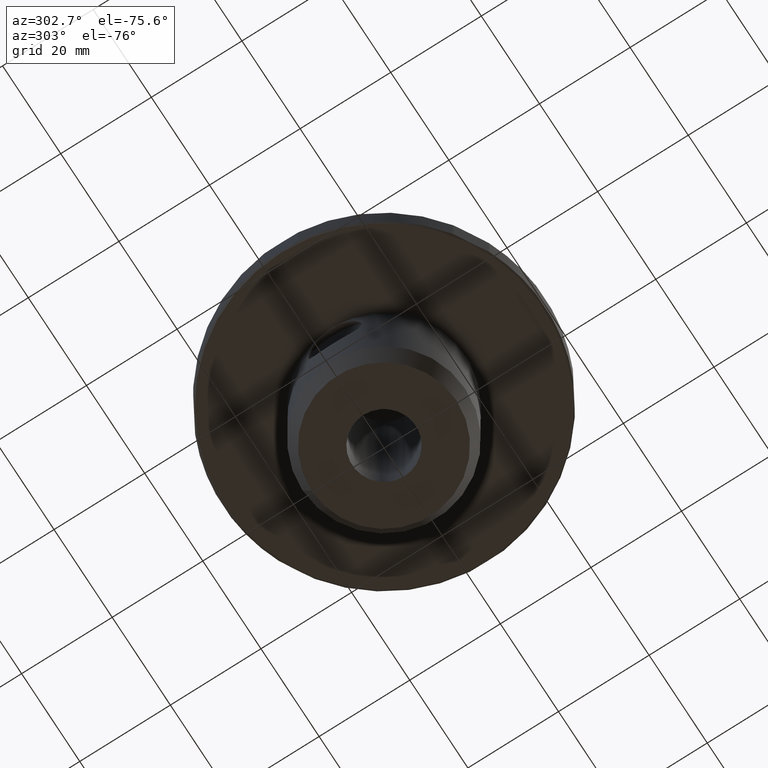
[diagram: clean part render]
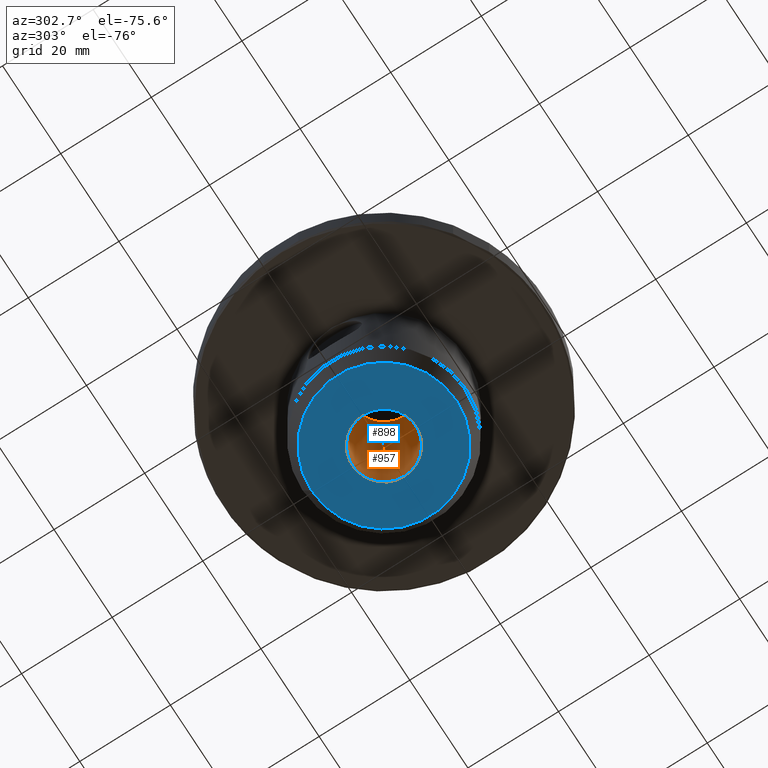
[diagram: same view with the hole feature highlighted: cylindrical wall and planar end face, labeled with their STEP entity ids]
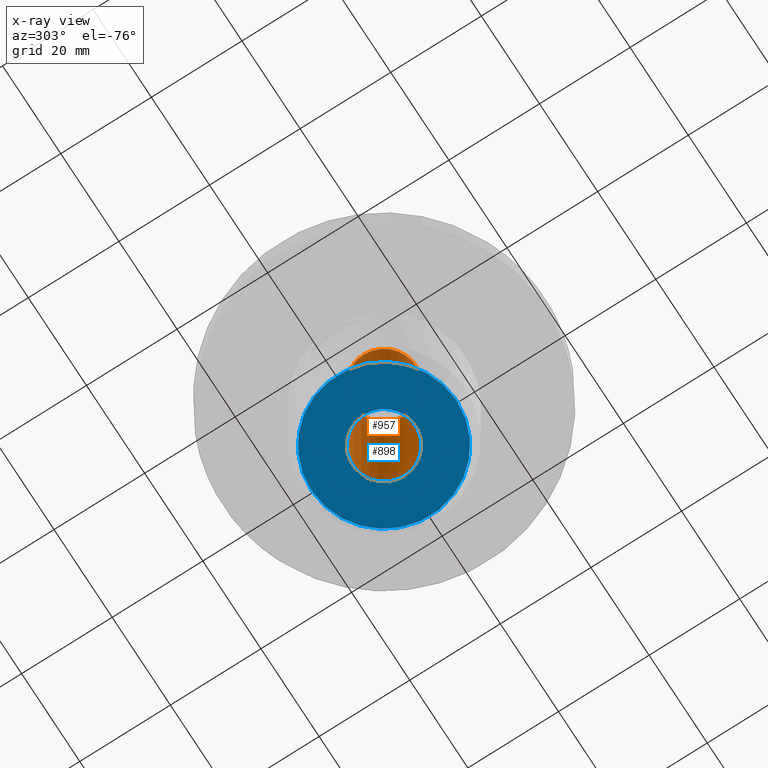
[diagram: x-ray of the same camera — body ghosted, the hole faces saturated]
A machine part, auxiliary view. The highlighted faces form one hole feature of diameter 14 mm: the cylindrical wall (entity #957, orange) and its adjacent planar end face (entity #898, blue) — they share a circular edge in the B-rep.
The next image is the same camera in x-ray (body ghosted, the hole faces saturated) — the bore reads through the body.
Wall:
#116=CIRCLE('',#980,6.99999999999988);
#166=CIRCLE('',#1089,6.99999999999991);
#410=ORIENTED_EDGE('',*,*,#423,.F.);
#411=ORIENTED_EDGE('',*,*,#541,.T.);
#423=EDGE_CURVE('',#548,#548,#116,.T.);
#541=EDGE_CURVE('',#632,#632,#166,.T.);
#548=VERTEX_POINT('',#1417);
#632=VERTEX_POINT('',#1813);
#764=EDGE_LOOP('',(#410));
#765=EDGE_LOOP('',(#411));
#860=FACE_BOUND('',#764,.T.);
#861=FACE_BOUND('',#765,.T.);
#894=CYLINDRICAL_SURFACE('',#1088,6.9999999999999);
#957=ADVANCED_FACE('',(#860,#861),#894,.F.);
#980=AXIS2_PLACEMENT_3D('',#1416,#1107,#1108);
#1088=AXIS2_PLACEMENT_3D('',#1811,#1351,#1352);
#1089=AXIS2_PLACEMENT_3D('',#1812,#1353,#1354);
#1107=DIRECTION('',(0.,0.,1.));
#1108=DIRECTION('',(1.,0.,0.));
#1351=DIRECTION('',(0.,0.,1.));
#1352=DIRECTION('',(1.,0.,0.));
#1353=DIRECTION('',(0.,0.,1.));
#1354=DIRECTION('',(1.,0.,0.));
#1416=CARTESIAN_POINT('',(0.,0.,-37.));
#1417=CARTESIAN_POINT('',(6.99999999999988,0.,-37.));
#1811=CARTESIAN_POINT('',(0.,0.,8.));
#1812=CARTESIAN_POINT('',(0.,0.,8.));
#1813=CARTESIAN_POINT('',(6.99999999999991,0.,8.));
End face:
#97=PLANE('',#979);
#116=CIRCLE('',#980,6.99999999999988);
#117=CIRCLE('',#981,16.);
#173=ORIENTED_EDGE('',*,*,#423,.T.);
#174=ORIENTED_EDGE('',*,*,#424,.T.);
#423=EDGE_CURVE('',#548,#548,#116,.T.);
#424=EDGE_CURVE('',#549,#549,#117,.T.);
#548=VERTEX_POINT('',#1417);
#549=VERTEX_POINT('',#1419);
#681=EDGE_LOOP('',(#173));
#682=EDGE_LOOP('',(#174));
#777=FACE_BOUND('',#681,.T.);
#778=FACE_BOUND('',#682,.T.);
#898=ADVANCED_FACE('',(#777,#778),#97,.T.);
#979=AXIS2_PLACEMENT_3D('',#1415,#1105,#1106);
#980=AXIS2_PLACEMENT_3D('',#1416,#1107,#1108);
#981=AXIS2_PLACEMENT_3D('',#1418,#1109,#1110);
#1105=DIRECTION('',(-5.47430718319515E-16,-8.51929311524195E-24,-1.));
#1106=DIRECTION('',(-6.38378239159465E-16,1.,-3.83055215771257E-23));
#1107=DIRECTION('',(0.,0.,1.));
#1108=DIRECTION('',(1.,0.,0.));
#1109=DIRECTION('',(-5.47430718319515E-16,-8.51929311524195E-24,-1.));
#1110=DIRECTION('',(-6.38378239159465E-16,1.,-3.83055215771257E-23));
#1415=CARTESIAN_POINT('',(-1.24232873841956E-13,15.9999999999999,-37.));
#1416=CARTESIAN_POINT('',(0.,0.,-37.));
#1417=CARTESIAN_POINT('',(6.99999999999988,0.,-37.));
#1418=CARTESIAN_POINT('',(-1.14018822015405E-13,-9.81645354835439E-14,-37.));
#1419=CARTESIAN_POINT('',(-1.24232873841956E-13,15.9999999999999,-37.));